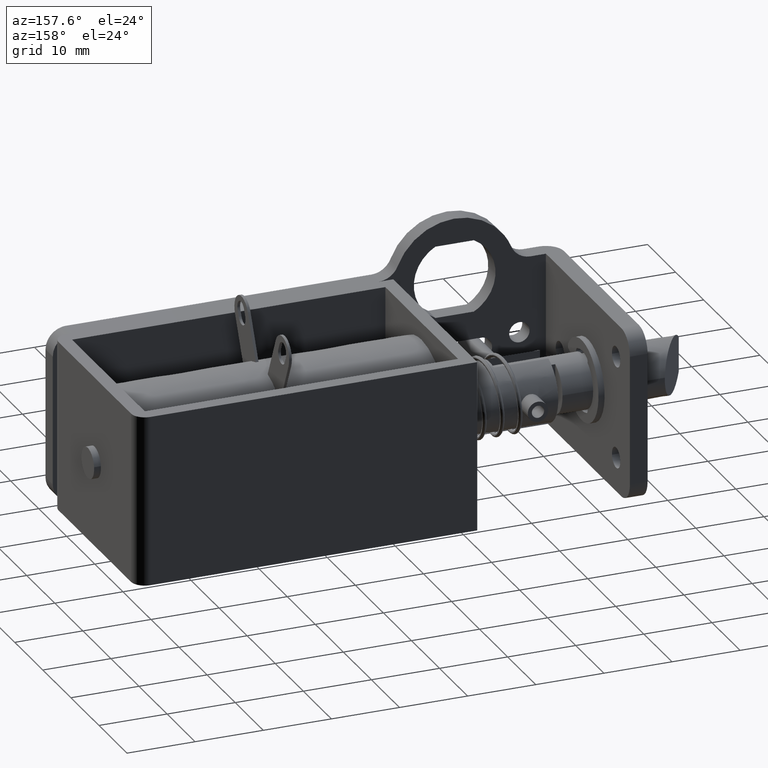
[diagram: clean part render]
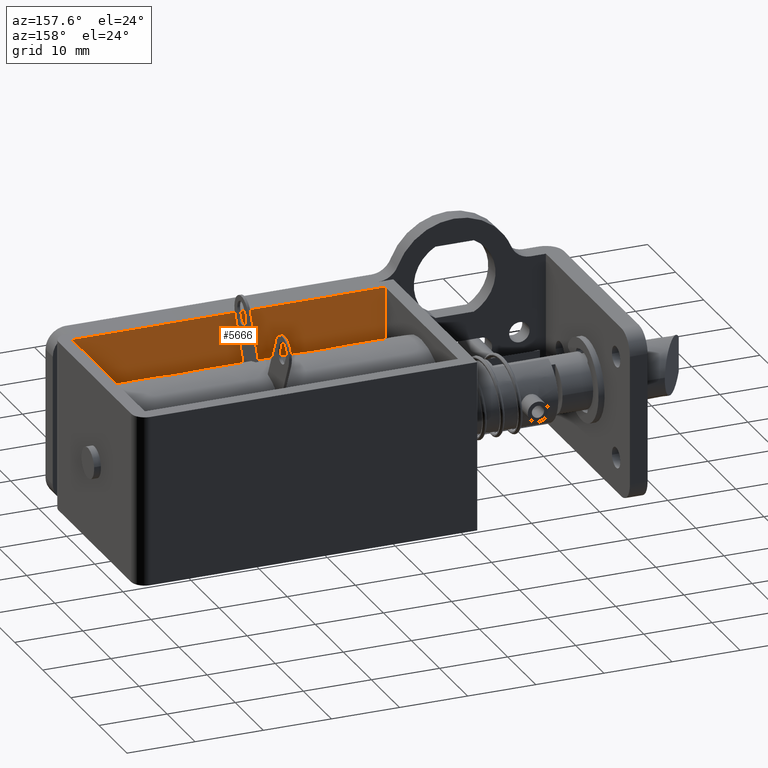
[diagram: same view with one face highlighted and labeled with its STEP entity id]
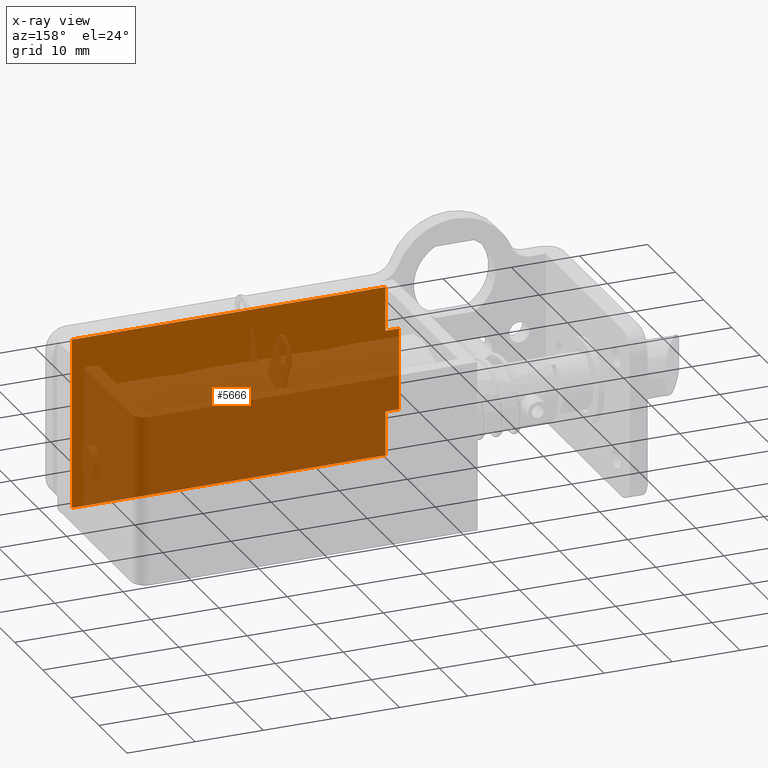
[diagram: x-ray of the same camera — body ghosted, the highlighted face saturated]
A machine part, auxiliary view. The second image highlights one B-rep face of the part: STEP entity #5666.
The next image is the same camera in x-ray: the body ghosted, the highlighted face saturated — about 69% of this face is hidden behind the body in this view.
In plain terms, the highlighted face is a freeform B-spline surface patch.
Its self-contained STEP definition (entity closure, byte-faithful):
#4467=CARTESIAN_POINT('',(11.000000000000201,4.600000000000160,-17.0));
#4468=VERTEX_POINT('',#4467);
#4469=CARTESIAN_POINT('',(11.000000000000201,4.600000000000110,-23.500000000000000));
#4470=VERTEX_POINT('',#4469);
#4471=CARTESIAN_POINT('',(11.000000000000201,4.600000000000160,-17.0));
#4472=CARTESIAN_POINT('',(11.000000000000201,4.600000000000110,-23.500000000000000));
#4473=QUASI_UNIFORM_CURVE('',1,(#4471,#4472),.UNSPECIFIED.,.F.,.U.);
#4474=EDGE_CURVE('',#4468,#4470,#4473,.T.);
#4503=CARTESIAN_POINT('',(9.000000000000199,4.600000000000160,-17.0));
#4504=VERTEX_POINT('',#4503);
#4505=CARTESIAN_POINT('',(9.000000000000199,4.600000000000160,-17.0));
#4506=CARTESIAN_POINT('',(11.000000000000201,4.600000000000160,-17.0));
#4507=QUASI_UNIFORM_CURVE('',1,(#4505,#4506),.UNSPECIFIED.,.F.,.U.);
#4508=EDGE_CURVE('',#4504,#4468,#4507,.T.);
#4595=CARTESIAN_POINT('',(11.000000000000201,4.600000000000160,1.500000000000000));
#4596=VERTEX_POINT('',#4595);
#4597=CARTESIAN_POINT('',(11.000000000000201,4.600000000000160,-5.0));
#4598=VERTEX_POINT('',#4597);
#4599=CARTESIAN_POINT('',(11.000000000000201,4.600000000000160,1.500000000000000));
#4600=CARTESIAN_POINT('',(11.000000000000201,4.600000000000160,-5.0));
#4601=QUASI_UNIFORM_CURVE('',1,(#4599,#4600),.UNSPECIFIED.,.F.,.U.);
#4602=EDGE_CURVE('',#4596,#4598,#4601,.T.);
#4631=CARTESIAN_POINT('',(9.000000000000199,4.600000000000160,-5.0));
#4632=VERTEX_POINT('',#4631);
#4633=CARTESIAN_POINT('',(11.000000000000201,4.600000000000160,-5.0));
#4634=CARTESIAN_POINT('',(9.000000000000199,4.600000000000160,-5.0));
#4635=QUASI_UNIFORM_CURVE('',1,(#4633,#4634),.UNSPECIFIED.,.F.,.U.);
#4636=EDGE_CURVE('',#4598,#4632,#4635,.T.);
#5489=CARTESIAN_POINT('',(57.0,4.600000000000110,1.499999999999946));
#5490=VERTEX_POINT('',#5489);
#5496=CARTESIAN_POINT('',(57.0,4.600000000000110,1.499999999999946));
#5497=CARTESIAN_POINT('',(11.000000000000201,4.600000000000160,1.500000000000000));
#5498=QUASI_UNIFORM_CURVE('',1,(#5496,#5497),.UNSPECIFIED.,.F.,.U.);
#5499=EDGE_CURVE('',#5490,#4596,#5498,.T.);
#5517=CARTESIAN_POINT('',(57.0,4.600000000000110,-23.500000000000000));
#5518=VERTEX_POINT('',#5517);
#5519=CARTESIAN_POINT('',(57.0,4.600000000000110,-23.500000000000000));
#5520=CARTESIAN_POINT('',(11.000000000000201,4.600000000000110,-23.500000000000000));
#5521=QUASI_UNIFORM_CURVE('',1,(#5519,#5520),.UNSPECIFIED.,.F.,.U.);
#5522=EDGE_CURVE('',#5518,#4470,#5521,.T.);
#5639=CARTESIAN_POINT('',(9.000000000000199,4.600000000000160,-17.0));
#5640=CARTESIAN_POINT('',(9.000000000000199,4.600000000000160,-5.0));
#5641=QUASI_UNIFORM_CURVE('',1,(#5639,#5640),.UNSPECIFIED.,.F.,.U.);
#5642=EDGE_CURVE('',#4504,#4632,#5641,.T.);
#5647=CARTESIAN_POINT('',(6.602400093033530,4.600000000000110,-24.748749951545150));
#5648=CARTESIAN_POINT('',(6.602400093033530,4.600000000000110,2.748750622097401));
#5649=CARTESIAN_POINT('',(59.397601194426997,4.600000000000110,-24.748749951545150));
#5650=CARTESIAN_POINT('',(59.397601194426997,4.600000000000110,2.748750622097401));
#5651=B_SPLINE_SURFACE_WITH_KNOTS('',1,1,((#5647,#5649),(#5648,#5650)),.UNSPECIFIED.,.F.,.F.,.U.,(2,2),(2,2),(0.0,27.497500573642551),(0.0,52.795201101393467),.UNSPECIFIED.);
#5652=ORIENTED_EDGE('',*,*,#4508,.F.);
#5653=ORIENTED_EDGE('',*,*,#5642,.T.);
#5654=ORIENTED_EDGE('',*,*,#4636,.F.);
#5655=ORIENTED_EDGE('',*,*,#4602,.F.);
#5656=ORIENTED_EDGE('',*,*,#5499,.F.);
#5657=CARTESIAN_POINT('',(57.0,4.600000000000110,-23.500000000000000));
#5658=CARTESIAN_POINT('',(57.0,4.600000000000110,1.499999999999946));
#5659=QUASI_UNIFORM_CURVE('',1,(#5657,#5658),.UNSPECIFIED.,.F.,.U.);
#5660=EDGE_CURVE('',#5518,#5490,#5659,.T.);
#5661=ORIENTED_EDGE('',*,*,#5660,.F.);
#5662=ORIENTED_EDGE('',*,*,#5522,.T.);
#5663=ORIENTED_EDGE('',*,*,#4474,.F.);
#5664=EDGE_LOOP('',(#5652,#5653,#5654,#5655,#5656,#5661,#5662,#5663));
#5665=FACE_OUTER_BOUND('',#5664,.T.);
#5666=ADVANCED_FACE('',(#5665),#5651,.T.);